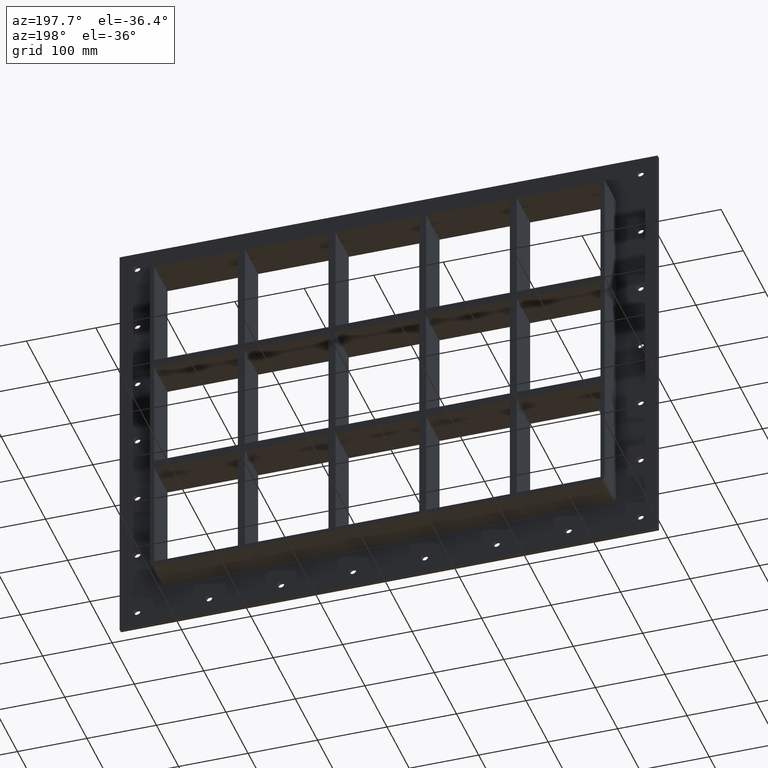
[diagram: clean part render]
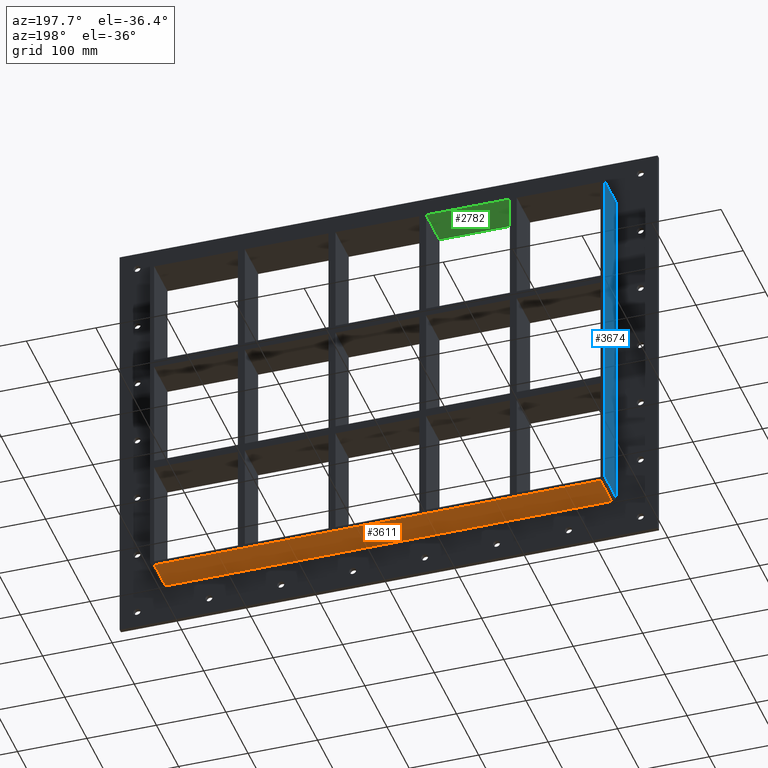
[diagram: same view with three faces highlighted in distinct colors, each labeled with its STEP entity id]
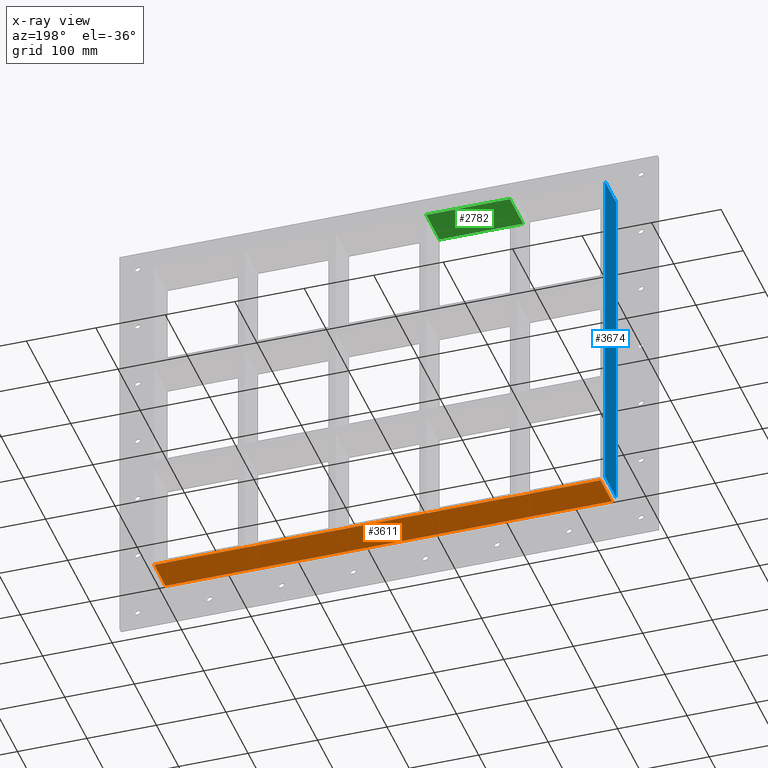
[diagram: x-ray of the same camera — body ghosted, the three highlighted faces saturated]
A machine part, auxiliary view with three faces highlighted in distinct colors.
The next image is the same camera in x-ray (body ghosted, the three faces saturated) — at least one of them is partly hidden behind the body in this view.
Their STEP definitions:

[orange] entity #3611 — the highlighted planar face has unit normal (0, 0, -1).
#1573=CARTESIAN_POINT('',(321.25,57.0,-257.25));
#1574=VERTEX_POINT('',#1573);
#1584=CARTESIAN_POINT('',(-321.25000000000011,57.0,-257.25));
#1585=VERTEX_POINT('',#1584);
#1586=CARTESIAN_POINT('',(321.25,57.0,-257.25));
#1587=DIRECTION('',(-1.0,0.0,0.0));
#1588=VECTOR('',#1587,642.50000000000011);
#1589=LINE('',#1586,#1588);
#1590=EDGE_CURVE('',#1574,#1585,#1589,.T.);
#3093=CARTESIAN_POINT('',(-321.25000000000006,6.000000000000001,-257.25));
#3094=VERTEX_POINT('',#3093);
#3104=CARTESIAN_POINT('',(321.25,6.000000000000001,-257.25));
#3105=VERTEX_POINT('',#3104);
#3106=CARTESIAN_POINT('',(321.25,6.000000000000001,-257.25));
#3107=DIRECTION('',(-1.0,0.0,0.0));
#3108=VECTOR('',#3107,642.5);
#3109=LINE('',#3106,#3108);
#3110=EDGE_CURVE('',#3105,#3094,#3109,.T.);
#3550=CARTESIAN_POINT('',(321.25,6.000000000000001,-257.25));
#3551=DIRECTION('',(0.0,1.0,0.0));
#3552=VECTOR('',#3551,51.0);
#3553=LINE('',#3550,#3552);
#3554=EDGE_CURVE('',#3105,#1574,#3553,.T.);
#3595=CARTESIAN_POINT('',(327.25,0.0,-257.25));
#3596=DIRECTION('',(0.0,0.0,-1.0));
#3597=DIRECTION('',(-1.0,0.0,0.0));
#3598=AXIS2_PLACEMENT_3D('',#3595,#3596,#3597);
#3599=PLANE('',#3598);
#3600=ORIENTED_EDGE('',*,*,#3110,.T.);
#3601=CARTESIAN_POINT('',(-321.25000000000006,57.0,-257.25));
#3602=DIRECTION('',(0.0,-1.0,0.0));
#3603=VECTOR('',#3602,51.0);
#3604=LINE('',#3601,#3603);
#3605=EDGE_CURVE('',#1585,#3094,#3604,.T.);
#3606=ORIENTED_EDGE('',*,*,#3605,.F.);
#3607=ORIENTED_EDGE('',*,*,#1590,.F.);
#3608=ORIENTED_EDGE('',*,*,#3554,.F.);
#3609=EDGE_LOOP('',(#3600,#3606,#3607,#3608));
#3610=FACE_OUTER_BOUND('',#3609,.T.);
#3611=ADVANCED_FACE('',(#3610),#3599,.T.);

[blue] entity #3674 — the highlighted planar face has unit normal (-1, 0, 0).
#1592=CARTESIAN_POINT('',(-327.25000000000011,57.0,-251.25));
#1593=VERTEX_POINT('',#1592);
#1601=CARTESIAN_POINT('',(-327.25000000000011,57.0,251.25));
#1602=VERTEX_POINT('',#1601);
#1603=CARTESIAN_POINT('',(-327.25000000000011,57.0,-251.25));
#1604=DIRECTION('',(0.0,0.0,1.0));
#1605=VECTOR('',#1604,502.5);
#1606=LINE('',#1603,#1605);
#1607=EDGE_CURVE('',#1593,#1602,#1606,.T.);
#3095=CARTESIAN_POINT('',(-327.25000000000011,6.000000000000001,-251.25));
#3096=VERTEX_POINT('',#3095);
#3146=CARTESIAN_POINT('',(-327.25000000000011,6.000000000000001,251.25));
#3147=VERTEX_POINT('',#3146);
#3155=CARTESIAN_POINT('',(-327.25000000000011,6.000000000000001,-251.25));
#3156=DIRECTION('',(0.0,0.0,1.0));
#3157=VECTOR('',#3156,502.5);
#3158=LINE('',#3155,#3157);
#3159=EDGE_CURVE('',#3096,#3147,#3158,.T.);
#3647=CARTESIAN_POINT('',(-327.25000000000011,6.000000000000001,-251.25));
#3648=DIRECTION('',(0.0,1.0,0.0));
#3649=VECTOR('',#3648,51.0);
#3650=LINE('',#3647,#3649);
#3651=EDGE_CURVE('',#3096,#1593,#3650,.T.);
#3658=CARTESIAN_POINT('',(-327.25000000000011,0.0,-257.25));
#3659=DIRECTION('',(-1.0,0.0,0.0));
#3660=DIRECTION('',(0.0,0.0,1.0));
#3661=AXIS2_PLACEMENT_3D('',#3658,#3659,#3660);
#3662=PLANE('',#3661);
#3663=ORIENTED_EDGE('',*,*,#3159,.T.);
#3664=CARTESIAN_POINT('',(-327.25000000000011,57.0,251.25));
#3665=DIRECTION('',(0.0,-1.0,0.0));
#3666=VECTOR('',#3665,51.0);
#3667=LINE('',#3664,#3666);
#3668=EDGE_CURVE('',#1602,#3147,#3667,.T.);
#3669=ORIENTED_EDGE('',*,*,#3668,.F.);
#3670=ORIENTED_EDGE('',*,*,#1607,.F.);
#3671=ORIENTED_EDGE('',*,*,#3651,.F.);
#3672=EDGE_LOOP('',(#3663,#3669,#3670,#3671));
#3673=FACE_OUTER_BOUND('',#3672,.T.);
#3674=ADVANCED_FACE('',(#3673),#3662,.T.);

[green] entity #2782 — the highlighted planar face has unit normal (0, 0, 1).
#1419=CARTESIAN_POINT('',(-70.250000000001364,-3.0,251.25000000000006));
#1420=VERTEX_POINT('',#1419);
#1427=CARTESIAN_POINT('',(-70.250000000001364,57.0,251.25000000000006));
#1428=VERTEX_POINT('',#1427);
#1429=CARTESIAN_POINT('',(-70.250000000001393,57.000000000000007,251.25000000000003));
#1430=DIRECTION('',(0.0,-1.0,0.0));
#1431=VECTOR('',#1430,60.000000000000007);
#1432=LINE('',#1429,#1431);
#1433=EDGE_CURVE('',#1428,#1420,#1432,.T.);
#1543=CARTESIAN_POINT('',(-190.75000000000728,57.0,251.25000000000006));
#1544=VERTEX_POINT('',#1543);
#1551=CARTESIAN_POINT('',(-190.75000000000728,-3.0,251.25000000000006));
#1552=VERTEX_POINT('',#1551);
#1553=CARTESIAN_POINT('',(-190.75000000000728,-3.0,251.25000000000003));
#1554=DIRECTION('',(0.0,1.0,0.0));
#1555=VECTOR('',#1554,60.000000000000007);
#1556=LINE('',#1553,#1555);
#1557=EDGE_CURVE('',#1552,#1544,#1556,.T.);
#1695=CARTESIAN_POINT('',(-70.250000000001364,57.0,251.25000000000003));
#1696=DIRECTION('',(-1.0,0.0,0.0));
#1697=VECTOR('',#1696,120.50000000000591);
#1698=LINE('',#1695,#1697);
#1699=EDGE_CURVE('',#1428,#1544,#1698,.T.);
#2553=CARTESIAN_POINT('',(-190.75000000000728,-3.0,251.25000000000003));
#2554=DIRECTION('',(1.0,0.0,0.0));
#2555=VECTOR('',#2554,120.50000000000591);
#2556=LINE('',#2553,#2555);
#2557=EDGE_CURVE('',#1552,#1420,#2556,.T.);
#2771=CARTESIAN_POINT('',(-321.25,0.0,251.25000000000003));
#2772=DIRECTION('',(0.0,0.0,1.0));
#2773=DIRECTION('',(1.0,0.0,0.0));
#2774=AXIS2_PLACEMENT_3D('',#2771,#2772,#2773);
#2775=PLANE('',#2774);
#2776=ORIENTED_EDGE('',*,*,#1433,.T.);
#2777=ORIENTED_EDGE('',*,*,#2557,.F.);
#2778=ORIENTED_EDGE('',*,*,#1557,.T.);
#2779=ORIENTED_EDGE('',*,*,#1699,.F.);
#2780=EDGE_LOOP('',(#2776,#2777,#2778,#2779));
#2781=FACE_OUTER_BOUND('',#2780,.T.);
#2782=ADVANCED_FACE('',(#2781),#2775,.F.);